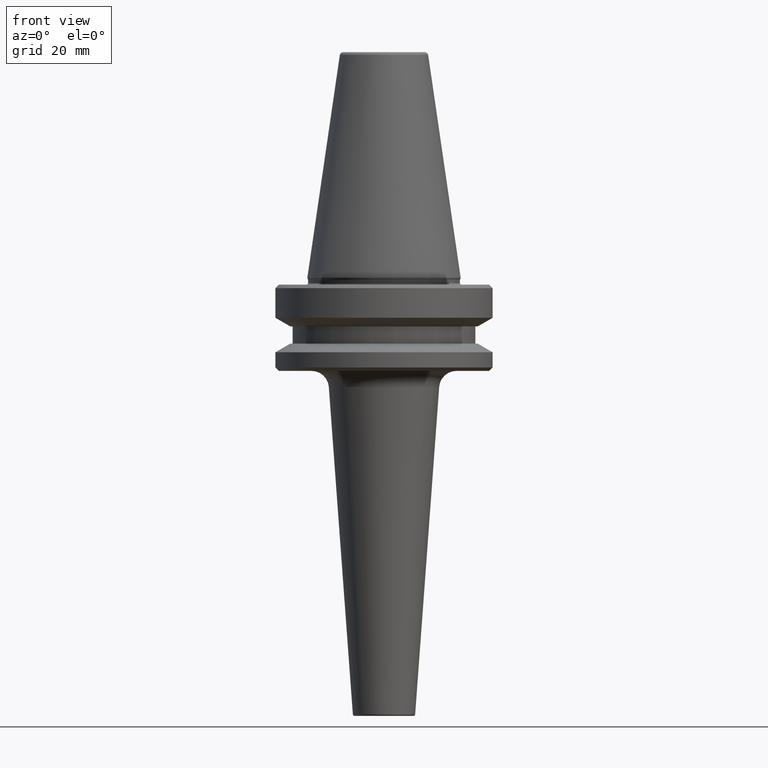
[diagram: clean part render]
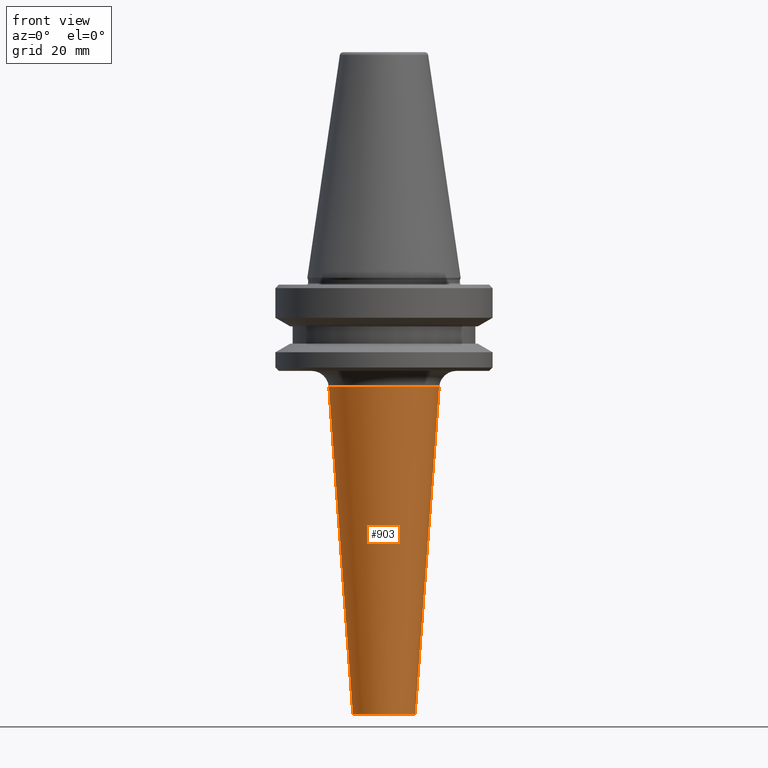
[diagram: same view with one face highlighted and labeled with its STEP entity id]
A machine part, front view. The second image highlights one B-rep face of the part: STEP entity #903.
In plain terms, the highlighted conical surface has half-angle 4.198 deg.
Its self-contained STEP definition (entity closure, byte-faithful):
#6 = DIRECTION ( 'NONE',  ( -0.07320446534292431000, 8.964961416550561000E-018, 0.9973169537583609400 ) ) ;
#7 = VERTEX_POINT ( 'NONE', #734 ) ;
#49 = CARTESIAN_POINT ( 'NONE',  ( -16.00000000000000400, 2.264775132424656500E-015, -97.03397767329343500 ) ) ;
#71 = LINE ( 'NONE', #742, #240 ) ;
#87 = CARTESIAN_POINT ( 'NONE',  ( 0.0000000000000000000, 0.0000000000000000000, -191.9366022326798300 ) ) ;
#102 = LINE ( 'NONE', #863, #931 ) ;
#192 = CONICAL_SURFACE ( 'NONE', #906, 16.00000000000000400, 0.07327000600964593500 ) ;
#227 = CARTESIAN_POINT ( 'NONE',  ( 16.00000000000000400, 0.0000000000000000000, -97.03397767329343500 ) ) ;
#235 = EDGE_CURVE ( 'NONE', #7, #803, #102, .T. ) ;
#236 = AXIS2_PLACEMENT_3D ( 'NONE', #87, #439, #529 ) ;
#240 = VECTOR ( 'NONE', #659, 1000.000000000000000 ) ;
#287 = DIRECTION ( 'NONE',  ( -0.0000000000000000000, -0.0000000000000000000, 1.000000000000000000 ) ) ;
#295 = DIRECTION ( 'NONE',  ( 1.000000000000000000, 0.0000000000000000000, 0.0000000000000000000 ) ) ;
#333 = EDGE_LOOP ( 'NONE', ( #524, #651, #577, #615 ) ) ;
#365 = VERTEX_POINT ( 'NONE', #227 ) ;
#374 = CIRCLE ( 'NONE', #236, 9.034014047059498500 ) ;
#380 = VERTEX_POINT ( 'NONE', #789 ) ;
#433 = EDGE_CURVE ( 'NONE', #803, #365, #981, .T. ) ;
#439 = DIRECTION ( 'NONE',  ( -0.0000000000000000000, -0.0000000000000000000, 1.000000000000000000 ) ) ;
#524 = ORIENTED_EDGE ( 'NONE', *, *, #235, .F. ) ;
#529 = DIRECTION ( 'NONE',  ( 1.000000000000000000, 0.0000000000000000000, 0.0000000000000000000 ) ) ;
#577 = ORIENTED_EDGE ( 'NONE', *, *, #871, .T. ) ;
#615 = ORIENTED_EDGE ( 'NONE', *, *, #433, .F. ) ;
#647 = CARTESIAN_POINT ( 'NONE',  ( 0.0000000000000000000, 0.0000000000000000000, -97.03397767329343500 ) ) ;
#651 = ORIENTED_EDGE ( 'NONE', *, *, #957, .T. ) ;
#659 = DIRECTION ( 'NONE',  ( 0.07320446534292431000, 0.0000000000000000000, 0.9973169537583609400 ) ) ;
#734 = CARTESIAN_POINT ( 'NONE',  ( -9.034014047059495000, 1.106347638618363900E-015, -191.9366022326798300 ) ) ;
#742 = CARTESIAN_POINT ( 'NONE',  ( 16.00000000000000400, 0.0000000000000000000, -97.03397767329343500 ) ) ;
#779 = AXIS2_PLACEMENT_3D ( 'NONE', #647, #858, #295 ) ;
#789 = CARTESIAN_POINT ( 'NONE',  ( 9.034014047059495000, 0.0000000000000000000, -191.9366022326798300 ) ) ;
#803 = VERTEX_POINT ( 'NONE', #49 ) ;
#813 = CARTESIAN_POINT ( 'NONE',  ( 0.0000000000000000000, 0.0000000000000000000, -97.03397767329343500 ) ) ;
#858 = DIRECTION ( 'NONE',  ( -0.0000000000000000000, -0.0000000000000000000, 1.000000000000000000 ) ) ;
#863 = CARTESIAN_POINT ( 'NONE',  ( -16.00000000000000400, 1.959434878635765500E-015, -97.03397767329343500 ) ) ;
#871 = EDGE_CURVE ( 'NONE', #380, #365, #71, .T. ) ;
#903 = ADVANCED_FACE ( 'NONE', ( #1040 ), #192, .T. ) ;
#906 = AXIS2_PLACEMENT_3D ( 'NONE', #813, #287, #962 ) ;
#931 = VECTOR ( 'NONE', #6, 1000.000000000000000 ) ;
#957 = EDGE_CURVE ( 'NONE', #7, #380, #374, .T. ) ;
#962 = DIRECTION ( 'NONE',  ( 1.000000000000000000, 0.0000000000000000000, 0.0000000000000000000 ) ) ;
#981 = CIRCLE ( 'NONE', #779, 16.00000000000000400 ) ;
#1040 = FACE_OUTER_BOUND ( 'NONE', #333, .T. ) ;